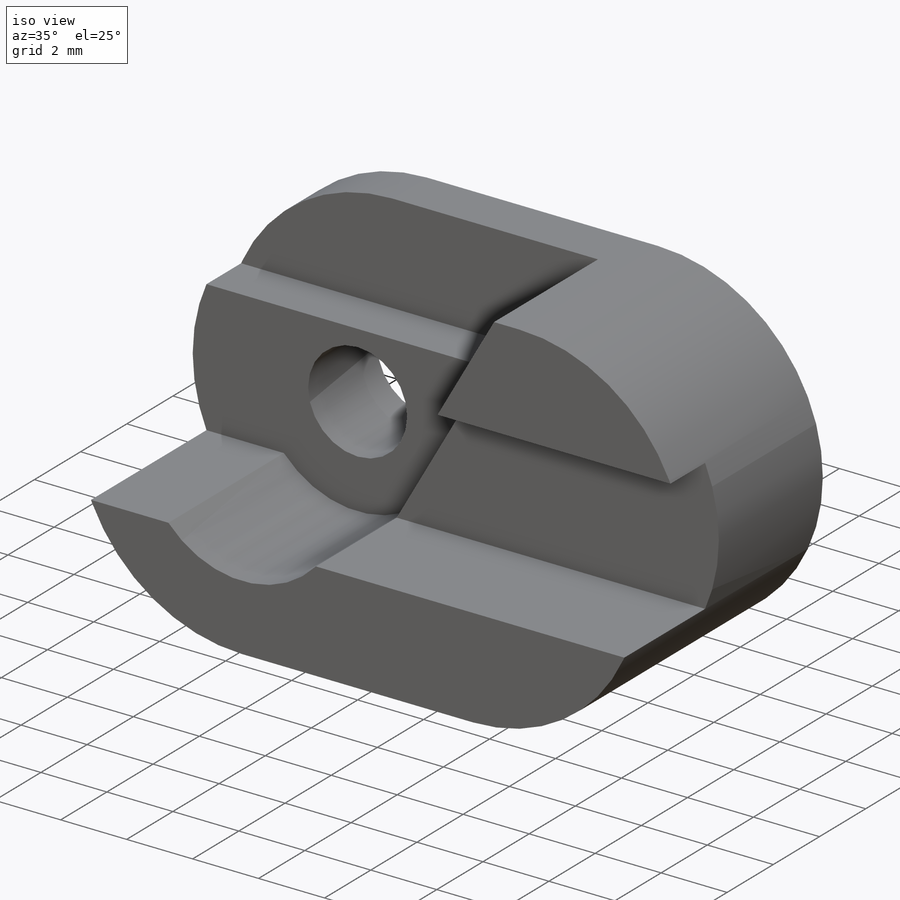
[diagram: iso view]
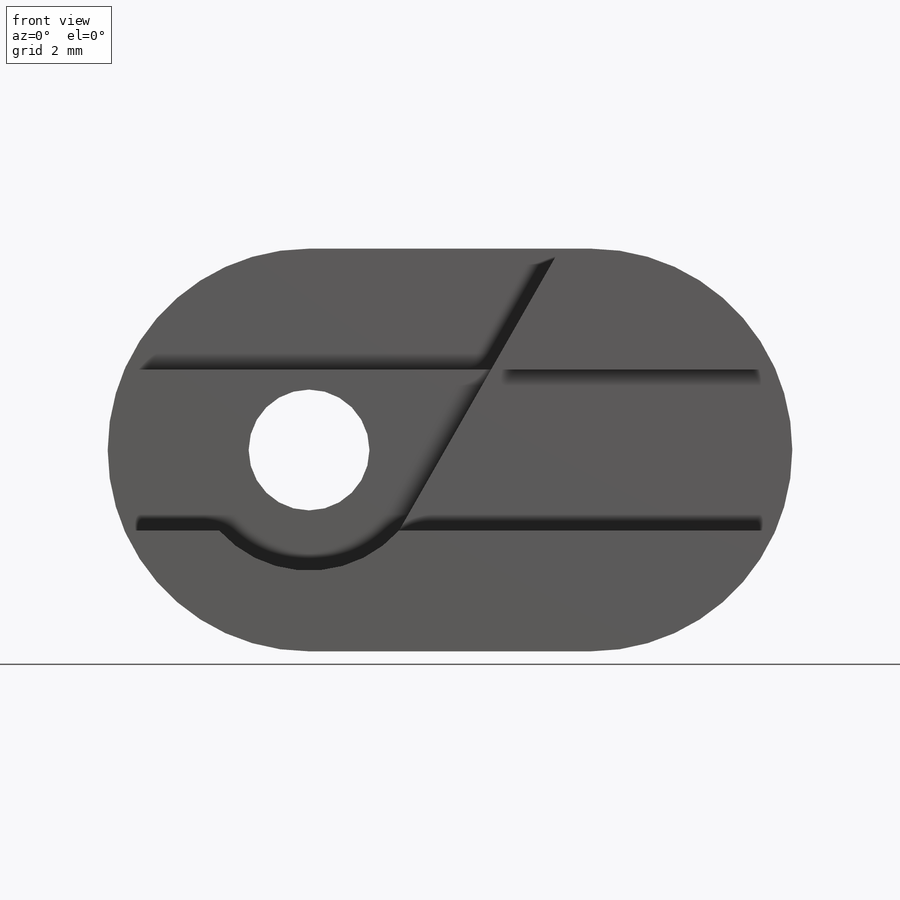
[diagram: front view]
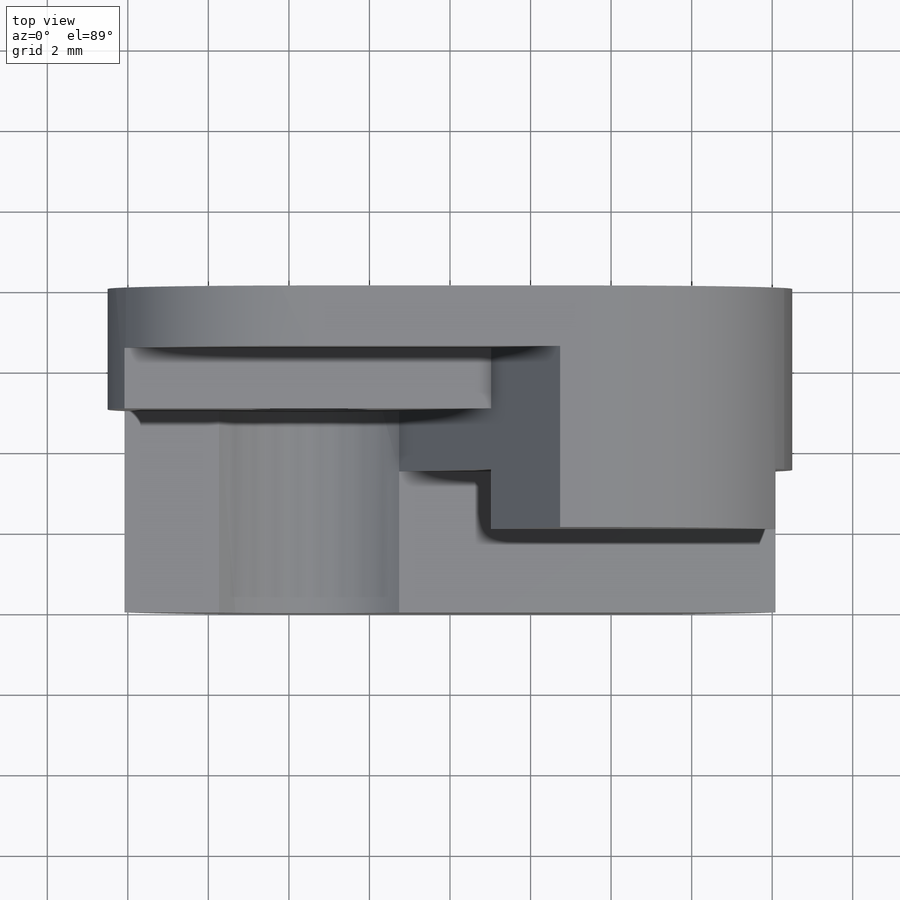
[diagram: top view]
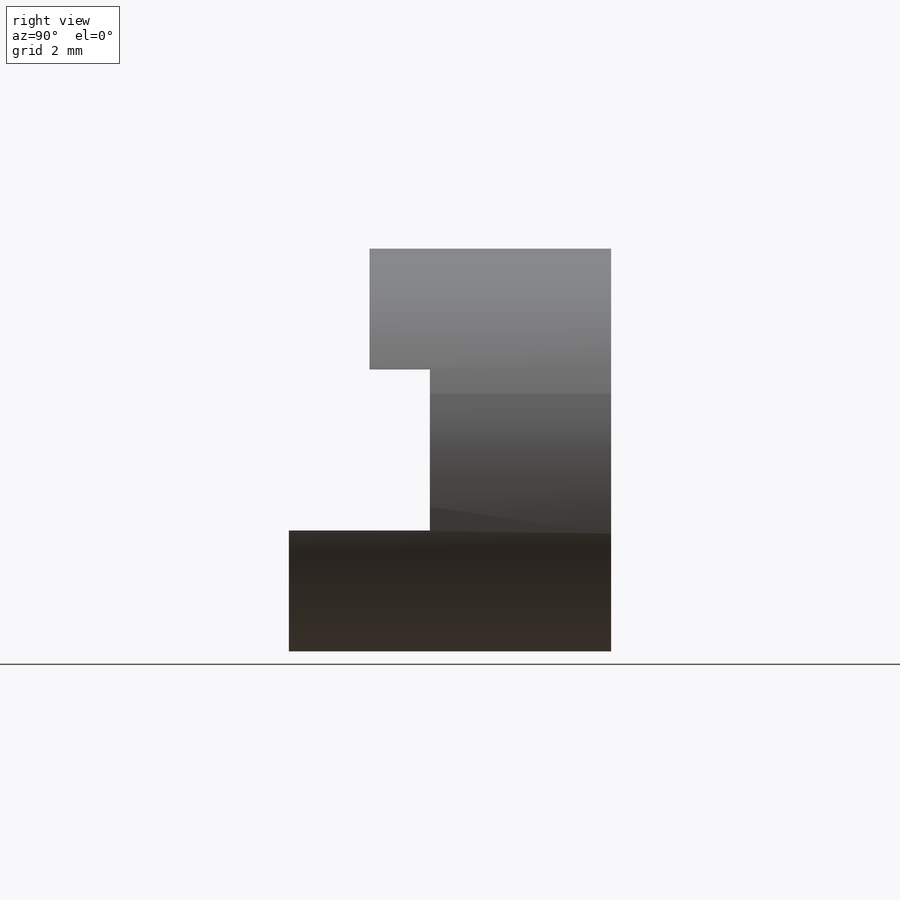
[diagram: right view]
SOLIDWORKS PART (.sldprt)
format: sldprt  version: not decoded by parser v0  size: 206,336 bytes
history: native  units: mm
features: sketch x4, cut_extrude x3, material x1, extrude x1 (+13 scaffold rows collapsed)
feature tree (22):
  scaffold x13  (default folders/planes/origin — collapsed)
  material  "Material <not specified>"
  sketch  "Sketch2"  dims[D3=5.0mm D4=3.0mm D1=0.0mm D2=7.0mm]
  extrude  "Boss-Extrude1"  Depth=8mm
  sketch  "Sketch3"  dims[D1=3.0mm D2=3.5mm D3=4.0mm D4=2.0mm D5=1.0mm]
  cut_extrude  "Cut-Extrude1"  Depth=18mm
  sketch  "Sketch4"  dims[D1=3.0mm D2=4.0mm]
  cut_extrude  "Cut-Extrude2"  Depth=5mm
  sketch  "Sketch5"
  cut_extrude  "Cut-Extrude3"  Depth=1.5mm
decode coverage: 7 of 8 modeling features carry decoded parameters
note: suppression state not decoded; provenance and decode notes live in map.json
